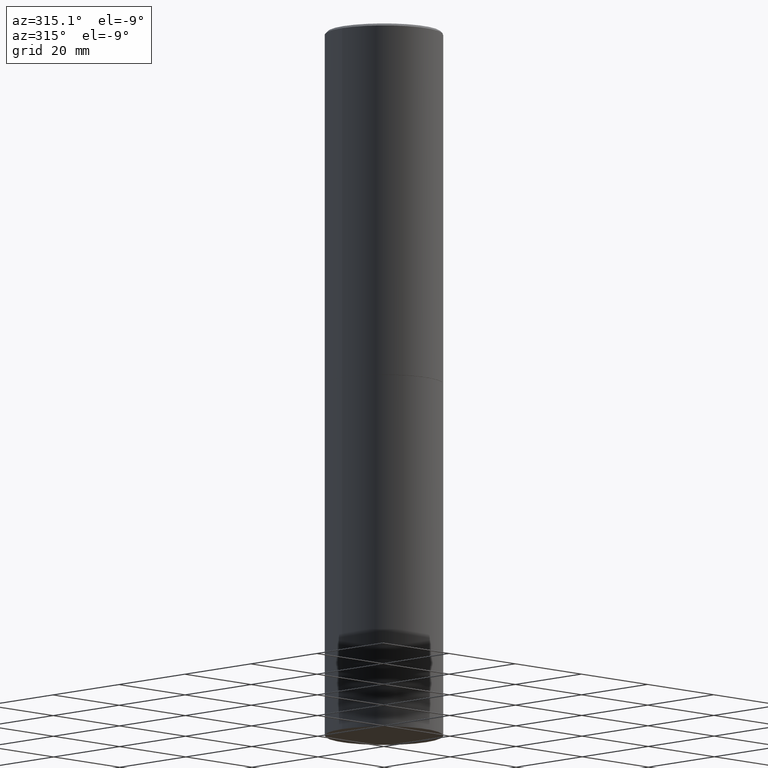
[diagram: clean part render]
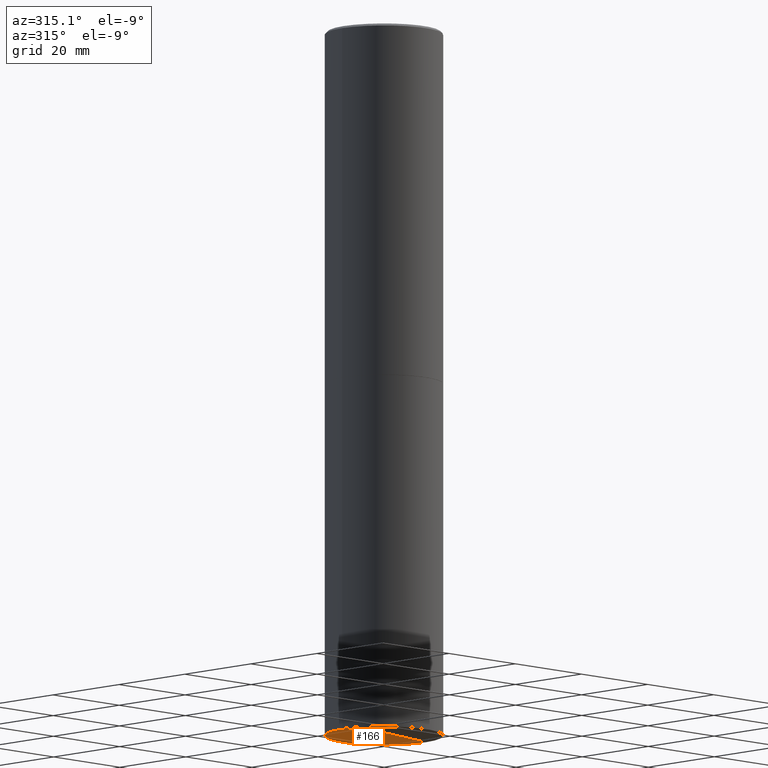
[diagram: same view with one face highlighted and labeled with its STEP entity id]
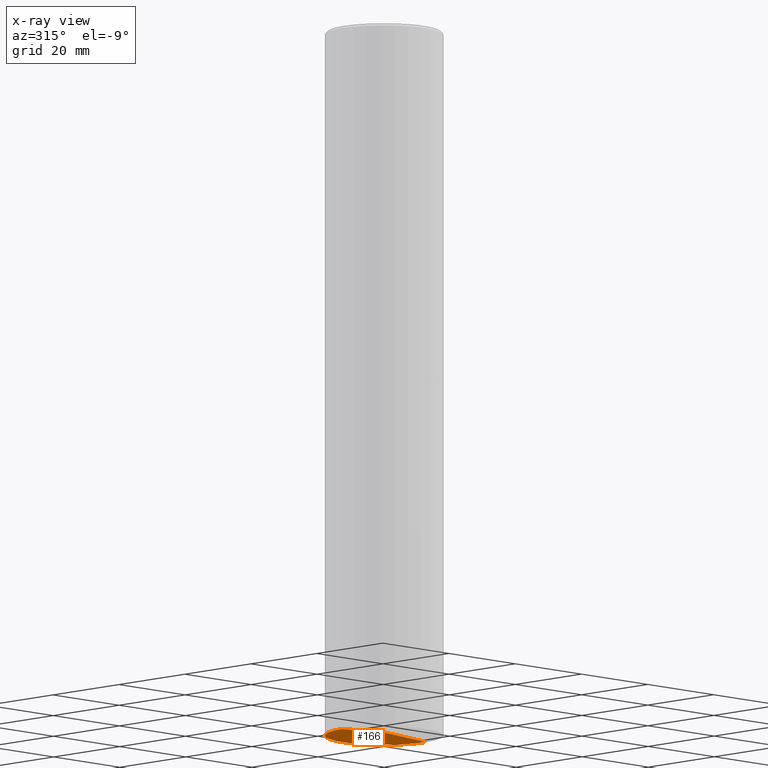
[diagram: x-ray of the same camera — body ghosted, the highlighted face saturated]
A machine part, auxiliary view. The second image highlights one B-rep face of the part: STEP entity #166.
The next image is the same camera in x-ray: the body ghosted, the highlighted face saturated — about 0% of this face is hidden behind the body in this view.
In plain terms, the highlighted conical surface has half-angle 87 deg.
Its self-contained STEP definition (entity closure, byte-faithful):
#36 = VERTEX_POINT ( 'NONE', #44 ) ;
#44 = CARTESIAN_POINT ( 'NONE',  ( -0.4999999999999991673, -1.745740669421574566E-14, -6.000000000000000888 ) ) ;
#72 = VERTEX_POINT ( 'NONE', #158 ) ;
#73 = FACE_OUTER_BOUND ( 'NONE', #213, .T. ) ;
#75 = CARTESIAN_POINT ( 'NONE',  ( -5.848269620656593019E-18, -2.085739764137040965E-14, -5.973796110358482458 ) ) ;
#90 = VECTOR ( 'NONE', #130, 39.37007874015748854 ) ;
#100 = AXIS2_PLACEMENT_3D ( 'NONE', #220, #193, #311 ) ;
#104 = CARTESIAN_POINT ( 'NONE',  ( 1.108870314984995048E-27, -1.583172928714155233E-13, -45.34387485051596656 ) ) ;
#117 = ORIENTED_EDGE ( 'NONE', *, *, #120, .T. ) ;
#120 = EDGE_CURVE ( 'NONE', #154, #36, #344, .T. ) ;
#122 = EDGE_CURVE ( 'NONE', #72, #36, #357, .T. ) ;
#130 = DIRECTION ( 'NONE',  ( -0.9986295347545742773, 6.790662755453662155E-15, -0.05233595624293820026 ) ) ;
#154 = VERTEX_POINT ( 'NONE', #194 ) ;
#158 = CARTESIAN_POINT ( 'NONE',  ( 0.4999999999999991673, -2.437913703194463533E-14, -6.000000000000000888 ) ) ;
#166 = ADVANCED_FACE ( 'NONE', ( #73 ), #304, .F. ) ;
#193 = DIRECTION ( 'NONE',  ( -2.445468806185136597E-29, 3.491481338843145583E-15, 1.000000000000000000 ) ) ;
#194 = CARTESIAN_POINT ( 'NONE',  ( 1.461281586724088411E-28, -2.085154937174960621E-14, -5.973796110358482458 ) ) ;
#195 = DIRECTION ( 'NONE',  ( 2.445468806185136597E-29, -3.491481338843145583E-15, -1.000000000000000000 ) ) ;
#213 = EDGE_LOOP ( 'NONE', ( #271, #117, #297 ) ) ;
#219 = VECTOR ( 'NONE', #349, 39.37007874015748854 ) ;
#220 = CARTESIAN_POINT ( 'NONE',  ( 1.467281283711081958E-28, -2.094888803305887271E-14, -6.000000000000000888 ) ) ;
#247 = EDGE_CURVE ( 'NONE', #154, #72, #326, .T. ) ;
#253 = DIRECTION ( 'NONE',  ( -1.000000000000000000, 6.982962677686266711E-15, 0.000000000000000000 ) ) ;
#270 = AXIS2_PLACEMENT_3D ( 'NONE', #104, #195, #253 ) ;
#271 = ORIENTED_EDGE ( 'NONE', *, *, #247, .F. ) ;
#297 = ORIENTED_EDGE ( 'NONE', *, *, #122, .F. ) ;
#304 = CONICAL_SURFACE ( 'NONE', #270, 751.2258538476485228, 1.518436449235072372 ) ;
#311 = DIRECTION ( 'NONE',  ( 1.000000000000000000, -6.982962677686262766E-15, 0.000000000000000000 ) ) ;
#326 = LINE ( 'NONE', #347, #219 ) ;
#344 = LINE ( 'NONE', #75, #90 ) ;
#347 = CARTESIAN_POINT ( 'NONE',  ( 5.848269620948768147E-18, -2.085739764137040965E-14, -5.973796110358482458 ) ) ;
#349 = DIRECTION ( 'NONE',  ( 0.9986295347545742773, -7.033825938272001856E-15, -0.05233595624293820026 ) ) ;
#357 = CIRCLE ( 'NONE', #100, 0.5000000000000000000 ) ;